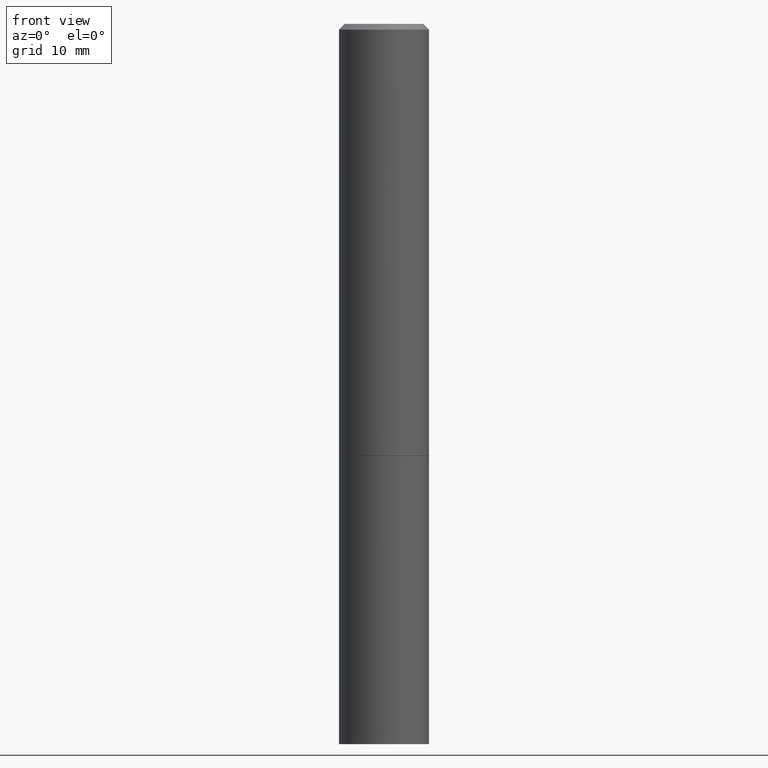
[diagram: clean part render]
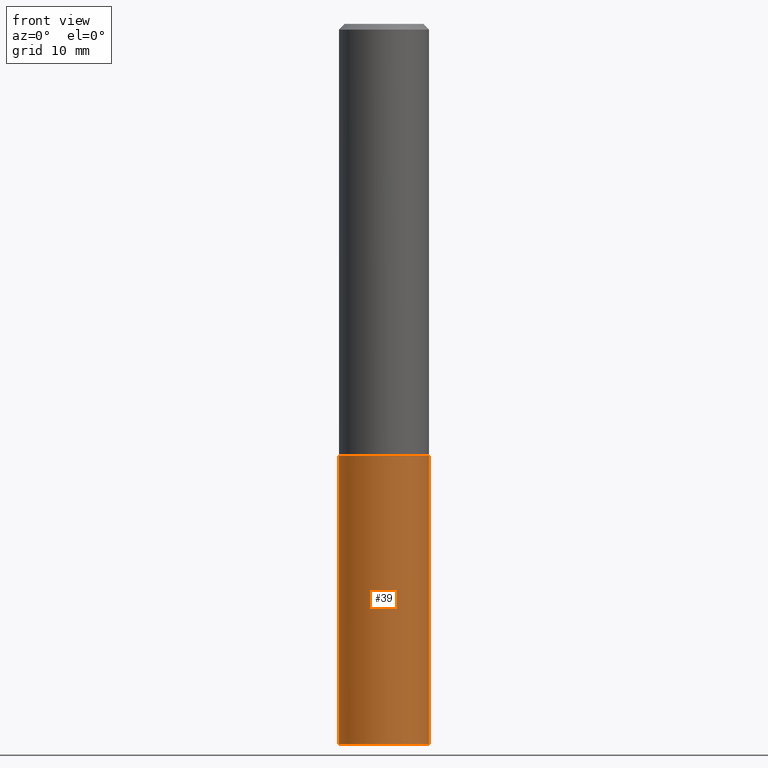
[diagram: same view with one face highlighted and labeled with its STEP entity id]
A machine part, front view. The second image highlights one B-rep face of the part: STEP entity #39.
In plain terms, the highlighted cylindrical surface (partial cylindrical patch) has radius 3.9688 mm, axis along (-0, 0, 1).
Its self-contained STEP definition (entity closure, byte-faithful):
#6 = DIRECTION ( 'NONE',  ( 1.000000000000000000, -6.982962677686269077E-15, 0.000000000000000000 ) ) ;
#16 = LINE ( 'NONE', #134, #274 ) ;
#23 = CIRCLE ( 'NONE', #176, 0.1562500000000000000 ) ;
#27 = VERTEX_POINT ( 'NONE', #154 ) ;
#33 = EDGE_CURVE ( 'NONE', #337, #27, #182, .T. ) ;
#39 = ADVANCED_FACE ( 'NONE', ( #285 ), #123, .T. ) ;
#43 = DIRECTION ( 'NONE',  ( 1.000000000000000000, -6.982962677686266711E-15, 4.876176775795936353E-29 ) ) ;
#55 = EDGE_CURVE ( 'NONE', #364, #337, #244, .T. ) ;
#64 = VERTEX_POINT ( 'NONE', #313 ) ;
#82 = EDGE_LOOP ( 'NONE', ( #121, #159, #196, #304 ) ) ;
#121 = ORIENTED_EDGE ( 'NONE', *, *, #334, .F. ) ;
#123 = CYLINDRICAL_SURFACE ( 'NONE', #359, 0.1562500000000000000 ) ;
#134 = CARTESIAN_POINT ( 'NONE',  ( -0.1562500000000000000, 1.110223024625156540E-15, -7.685836078523291160E-30 ) ) ;
#139 = AXIS2_PLACEMENT_3D ( 'NONE', #344, #146, #6 ) ;
#146 = DIRECTION ( 'NONE',  ( -2.445468806185136597E-29, 3.491481338843145583E-15, 1.000000000000000000 ) ) ;
#148 = CARTESIAN_POINT ( 'NONE',  ( 0.1562500000000000000, -1.091087918388479174E-15, 7.619026212181150377E-30 ) ) ;
#154 = CARTESIAN_POINT ( 'NONE',  ( 0.1562500000000000000, -6.328309926653198139E-15, -1.500000000000000222 ) ) ;
#159 = ORIENTED_EDGE ( 'NONE', *, *, #55, .T. ) ;
#176 = AXIS2_PLACEMENT_3D ( 'NONE', #323, #358, #243 ) ;
#179 = DIRECTION ( 'NONE',  ( -2.445468806185136877E-29, 3.491481338843145188E-15, 1.000000000000000000 ) ) ;
#182 = LINE ( 'NONE', #148, #354 ) ;
#196 = ORIENTED_EDGE ( 'NONE', *, *, #33, .T. ) ;
#207 = CARTESIAN_POINT ( 'NONE',  ( 0.000000000000000000, 0.000000000000000000, 0.000000000000000000 ) ) ;
#213 = CARTESIAN_POINT ( 'NONE',  ( 0.1562500000000000000, -9.819791265496344905E-15, -2.500000000000000000 ) ) ;
#223 = EDGE_CURVE ( 'NONE', #64, #27, #23, .T. ) ;
#239 = DIRECTION ( 'NONE',  ( -2.445468806185136877E-29, 3.491481338843145188E-15, 1.000000000000000000 ) ) ;
#243 = DIRECTION ( 'NONE',  ( 1.000000000000000000, -6.982962677686269077E-15, 0.000000000000000000 ) ) ;
#244 = CIRCLE ( 'NONE', #139, 0.1562500000000000000 ) ;
#274 = VECTOR ( 'NONE', #239, 39.37007874015748143 ) ;
#285 = FACE_OUTER_BOUND ( 'NONE', #82, .T. ) ;
#292 = DIRECTION ( 'NONE',  ( -2.445468806185136597E-29, 3.491481338843145583E-15, 1.000000000000000000 ) ) ;
#304 = ORIENTED_EDGE ( 'NONE', *, *, #223, .F. ) ;
#313 = CARTESIAN_POINT ( 'NONE',  ( -0.1562500000000000000, -5.872739653061135414E-15, -1.500000000000000222 ) ) ;
#323 = CARTESIAN_POINT ( 'NONE',  ( 3.668203209277704895E-29, -5.237222008264718177E-15, -1.500000000000000222 ) ) ;
#334 = EDGE_CURVE ( 'NONE', #364, #64, #16, .T. ) ;
#337 = VERTEX_POINT ( 'NONE', #213 ) ;
#344 = CARTESIAN_POINT ( 'NONE',  ( 6.113672015462842613E-29, -8.728703347107864943E-15, -2.500000000000000000 ) ) ;
#354 = VECTOR ( 'NONE', #179, 39.37007874015748143 ) ;
#358 = DIRECTION ( 'NONE',  ( -2.445468806185136597E-29, 3.491481338843145583E-15, 1.000000000000000000 ) ) ;
#359 = AXIS2_PLACEMENT_3D ( 'NONE', #207, #292, #43 ) ;
#361 = CARTESIAN_POINT ( 'NONE',  ( -0.1562500000000000000, -5.872739653061135414E-15, -2.500000000000000000 ) ) ;
#364 = VERTEX_POINT ( 'NONE', #361 ) ;